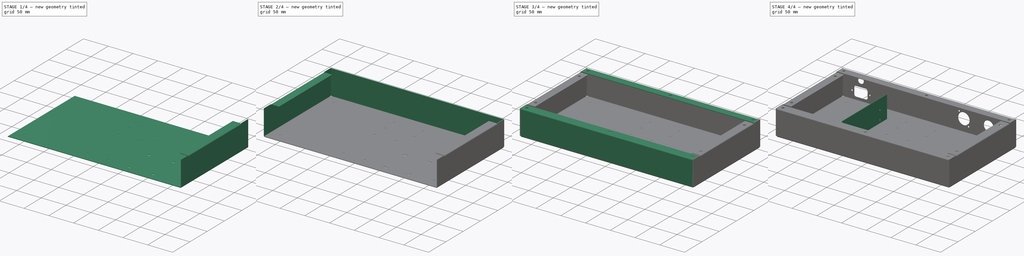
[diagram: build sequence overview — one tinted view per stage of 4, left to right]
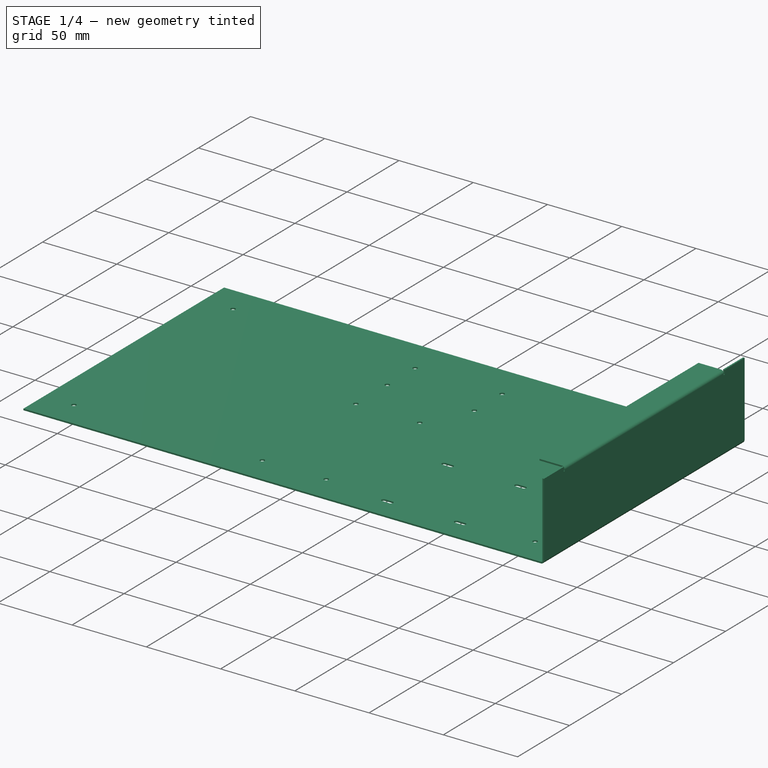
[diagram: stage 1 of 4 — iso view after this stage's code; geometry added in this stage tinted green]
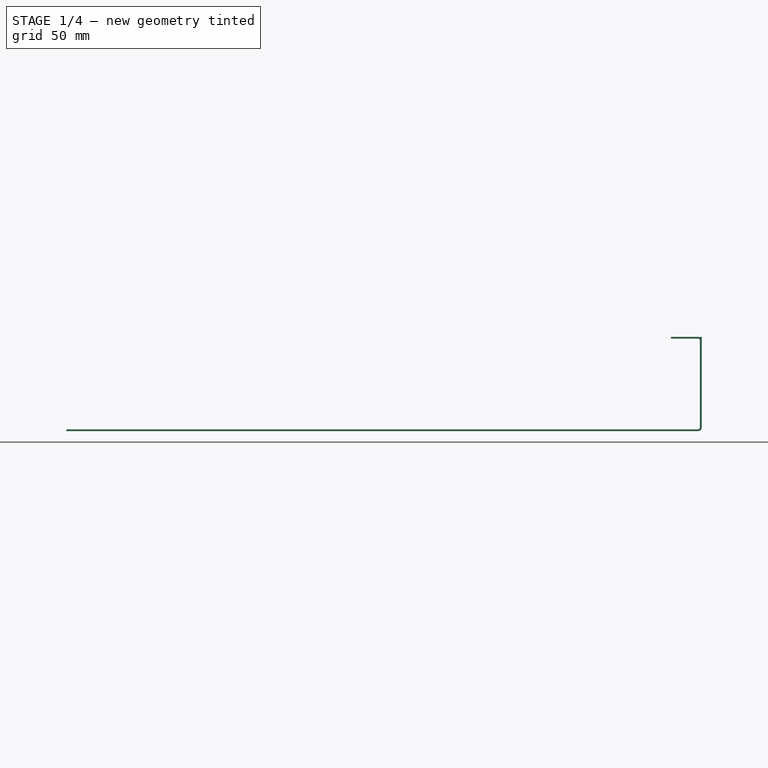
[diagram: stage 1 of 4 — front view after this stage's code; geometry added in this stage tinted green]
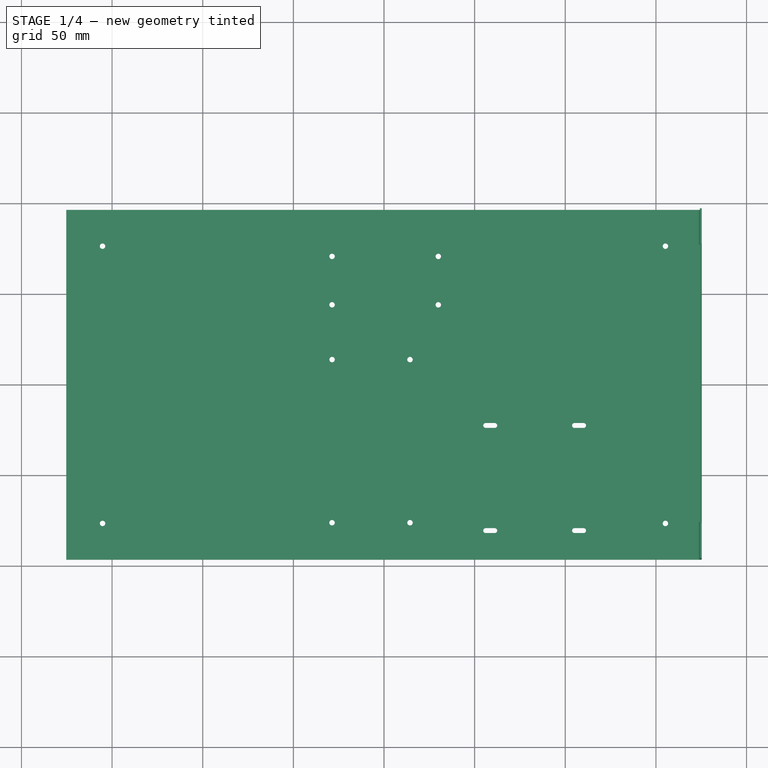
[diagram: stage 1 of 4 — top view after this stage's code; geometry added in this stage tinted green]
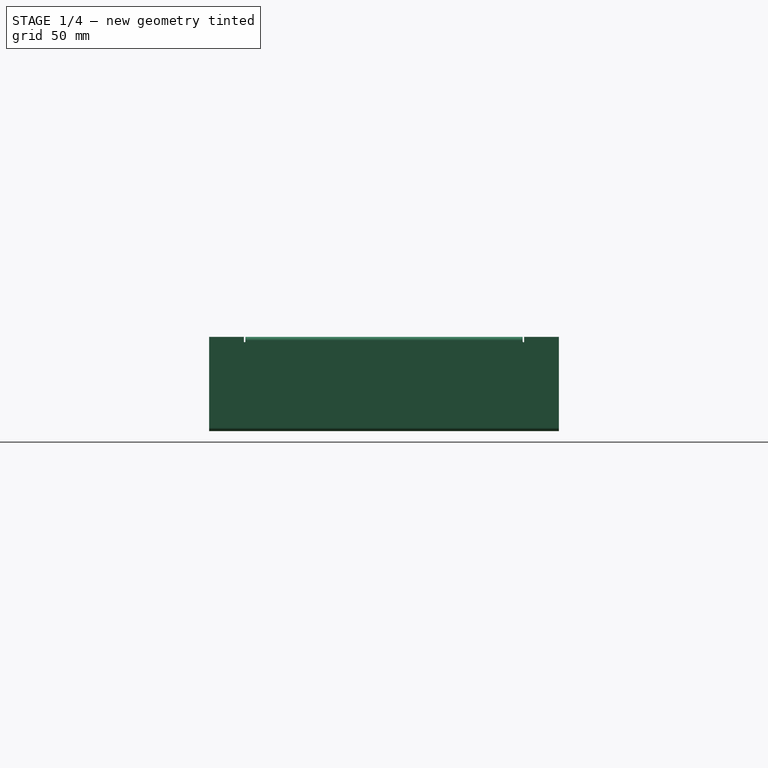
[diagram: stage 1 of 4 — right view after this stage's code; geometry added in this stage tinted green]
FCSTD DOCUMENT  (FreeCAD 1.1R20260414 (Git shallow))
Label: radiobox
License: All rights reserved
LicenseURL: https://en.wikipedia.org/wiki/All_rights_reserved
objects: PartDesign::FeaturePython×8, Sketcher::SketchObject×5, PartDesign::Pad×2, PartDesign::Hole×2, App::Point×1, PartDesign::Pocket×1, PartDesign::Body×1
note: 42 computed .brp shape members not serialized (recipe doc carries the construction recipe); baked Part::Feature solids carry a one-line shape summary decoded from their .brp

FEATURE [App::Point] Origin001  label="Počátek"
  Role = Origin
FEATURE [Sketcher::SketchObject] Sketch
  ArcFitTolerance = 1e-06
  AttachmentSupport = -> [Origin]
  ExternalTypes = [0]
  FullyConstrained = true
  MakeInternals = false
  MapMode = 5
  _ExternalGeoVersion = 1
  sketch-geometry (82):
    g0: LineSegment StartX=-175.25 StartY=96.4865 StartZ=0 EndX=-175.25 EndY=-96.4865 EndZ=0
    g1: LineSegment StartX=-175.25 StartY=-96.4865 StartZ=0 EndX=175.25 EndY=-96.4865 EndZ=0
    g2: LineSegment StartX=175.25 StartY=-96.4865 StartZ=0 EndX=175.25 EndY=96.4865 EndZ=0
    g3: LineSegment StartX=175.25 StartY=96.4865 StartZ=0 EndX=-175.25 EndY=96.4865 EndZ=0
    g4: LineSegment [constr] StartX=-160.25 StartY=47.5135 StartZ=0 EndX=-160.25 EndY=-81.4865 EndZ=0
    g5: LineSegment [constr] StartX=-160.25 StartY=-81.4865 StartZ=0 EndX=-63.25 EndY=-81.4865 EndZ=0
    g6: LineSegment [constr] StartX=-63.25 StartY=-81.4865 StartZ=0 EndX=-63.25 EndY=47.5135 EndZ=0
    g7: LineSegment [constr] StartX=-63.25 StartY=47.5135 StartZ=0 EndX=-160.25 EndY=47.5135 EndZ=0
    g8: LineSegment [constr] StartX=-33.25 StartY=18.5135 StartZ=0 EndX=-33.25 EndY=-81.4865 EndZ=0
    g9: LineSegment [constr] StartX=-33.25 StartY=-81.4865 StartZ=0 EndX=19.75 EndY=-81.4865 EndZ=0
    g10: LineSegment [constr] StartX=19.75 StartY=-81.4865 StartZ=0 EndX=19.75 EndY=18.5135 EndZ=0
    g11: LineSegment [constr] StartX=19.75 StartY=18.5135 StartZ=0 EndX=-33.25 EndY=18.5135 EndZ=0
    g12: LineSegment [constr] StartX=1.25 StartY=-24.2865 StartZ=0 EndX=1.25 EndY=-77.2865 EndZ=0
    g13: LineSegment [constr] StartX=1.25 StartY=-77.2865 StartZ=0 EndX=59.25 EndY=-77.2865 EndZ=0
    g14: LineSegment [constr] StartX=59.25 StartY=-77.2865 StartZ=0 EndX=59.25 EndY=-24.2865 EndZ=0
    g15: LineSegment [constr] StartX=59.25 StartY=-24.2865 StartZ=0 EndX=1.25 EndY=-24.2865 EndZ=0
    g16: LineSegment [constr] StartX=54.25 StartY=4.11351 StartZ=0 EndX=54.25 EndY=-83.8865 EndZ=0
    g17: LineSegment [constr] StartX=54.25 StartY=-83.8865 StartZ=0 EndX=110.25 EndY=-83.8865 EndZ=0
    g18: LineSegment [constr] StartX=110.25 StartY=-83.8865 StartZ=0 EndX=110.25 EndY=4.11351 EndZ=0
    g19: LineSegment [constr] StartX=110.25 StartY=4.11351 StartZ=0 EndX=54.25 EndY=4.11351 EndZ=0
    g20: LineSegment [constr] StartX=-32.35 StartY=81.4865 StartZ=0 EndX=-32.35 EndY=33.4865 EndZ=0
    g21: LineSegment [constr] StartX=-32.35 StartY=33.4865 StartZ=0 EndX=33.65 EndY=33.4865 EndZ=0
    g22: LineSegment [constr] StartX=33.65 StartY=33.4865 StartZ=0 EndX=33.65 EndY=81.4865 EndZ=0
    g23: LineSegment [constr] StartX=33.65 StartY=81.4865 StartZ=0 EndX=-32.35 EndY=81.4865 EndZ=0
    g24: GeomPoint X=-28.65 Y=70.8365 Z=0
    g25: GeomPoint X=29.95 Y=70.8365 Z=0
    g26: GeomPoint X=29.95 Y=44.1365 Z=0
    g27: GeomPoint X=-28.65 Y=44.1365 Z=0
    g28: GeomPoint X=-28.65 Y=13.9135 Z=0
    g29: GeomPoint X=14.35 Y=13.9135 Z=0
    g30: GeomPoint X=-28.65 Y=-76.0865 Z=0
    g31: GeomPoint X=14.35 Y=-76.0865 Z=0
    g32: GeomPoint X=-155.25 Y=76.4865 Z=0
    g33: GeomPoint X=-155.25 Y=-76.4865 Z=0
    g34: GeomPoint X=155.25 Y=-76.4865 Z=0
    g35: GeomPoint X=155.25 Y=76.4865 Z=0
    g36: LineSegment [constr] StartX=-63.25 StartY=-81.4865 StartZ=0 EndX=-33.25 EndY=-81.4865 EndZ=0
    g37: ArcOfCircle CenterX=56.1 CenterY=-80.4365 CenterZ=0 NormalX=0 NormalY=0 NormalZ=1 AngleXU=0 Radius=1.35 StartAngle=1.5708 EndAngle=4.71239
    g38: ArcOfCircle CenterX=61.1 CenterY=-80.4365 CenterZ=0 NormalX=0 NormalY=0 NormalZ=1 AngleXU=0 Radius=1.35 StartAngle=4.71239 EndAngle=7.85398
    g39: LineSegment StartX=56.1 StartY=-79.0865 StartZ=0 EndX=61.1 EndY=-79.0865 EndZ=0
    g40: LineSegment StartX=56.1 StartY=-81.7865 StartZ=0 EndX=61.1 EndY=-81.7865 EndZ=0
    g41: ArcOfCircle CenterX=105.1 CenterY=-22.4365 CenterZ=0 NormalX=0 NormalY=0 NormalZ=1 AngleXU=0 Radius=1.35 StartAngle=1.5708 EndAngle=4.71239
    g42: ArcOfCircle CenterX=110.1 CenterY=-22.4365 CenterZ=0 NormalX=0 NormalY=0 NormalZ=1 AngleXU=0 Radius=1.35 StartAngle=4.71239 EndAngle=7.85398
    g43: LineSegment StartX=105.1 StartY=-21.0865 StartZ=0 EndX=110.1 EndY=-21.0865 EndZ=0
    g44: LineSegment StartX=105.1 StartY=-23.7865 StartZ=0 EndX=110.1 EndY=-23.7865 EndZ=0
    g45: ArcOfCircle CenterX=56.1 CenterY=-22.4365 CenterZ=0 NormalX=0 NormalY=0 NormalZ=1 AngleXU=0 Radius=1.35 StartAngle=1.5708 EndAngle=4.71239
    g46: ArcOfCircle CenterX=61.1 CenterY=-22.4365 CenterZ=0 NormalX=0 NormalY=0 NormalZ=1 AngleXU=0 Radius=1.35 StartAngle=4.71239 EndAngle=7.85398
    g47: LineSegment StartX=56.1 StartY=-21.0865 StartZ=0 EndX=61.1 EndY=-21.0865 EndZ=0
    g48: LineSegment StartX=56.1 StartY=-23.7865 StartZ=0 EndX=61.1 EndY=-23.7865 EndZ=0
    g49: ArcOfCircle CenterX=105.1 CenterY=-80.4365 CenterZ=0 NormalX=0 NormalY=0 NormalZ=1 AngleXU=0 Radius=1.35 StartAngle=1.5708 EndAngle=4.71239
    g50: ArcOfCircle CenterX=110.1 CenterY=-80.4365 CenterZ=0 NormalX=0 NormalY=0 NormalZ=1 AngleXU=0 Radius=1.35 StartAngle=4.71239 EndAngle=7.85398
    g51: LineSegment StartX=105.1 StartY=-79.0865 StartZ=0 EndX=110.1 EndY=-79.0865 EndZ=0
    g52: LineSegment StartX=105.1 StartY=-81.7865 StartZ=0 EndX=110.1 EndY=-81.7865 EndZ=0
    g53: LineSegment [constr] StartX=61.1 StartY=-80.4365 StartZ=0 EndX=105.1 EndY=-80.4365 EndZ=0
    g54: LineSegment [constr] StartX=61.1 StartY=-22.4365 StartZ=0 EndX=105.1 EndY=-22.4365 EndZ=0
    g55: LineSegment [constr] StartX=110.1 StartY=-22.4365 StartZ=0 EndX=110.1 EndY=-80.4365 EndZ=0
    g56: LineSegment [constr] StartX=56.1 StartY=-22.4365 StartZ=0 EndX=56.1 EndY=-80.4365 EndZ=0
    g57: LineSegment [constr] StartX=-155.25 StartY=76.4865 StartZ=0 EndX=-155.25 EndY=-76.4865 EndZ=0
    g58: LineSegment [constr] StartX=-155.25 StartY=76.4865 StartZ=0 EndX=155.25 EndY=76.4865 EndZ=0
    g59: LineSegment [constr] StartX=155.25 StartY=76.4865 StartZ=0 EndX=155.25 EndY=-76.4865 EndZ=0
    g60: LineSegment [constr] StartX=-155.25 StartY=-76.4865 StartZ=0 EndX=155.25 EndY=-76.4865 EndZ=0
    g61: LineSegment [constr] StartX=-28.65 StartY=70.8365 StartZ=0 EndX=29.95 EndY=70.8365 EndZ=0
    g62: LineSegment [constr] StartX=29.95 StartY=70.8365 StartZ=0 EndX=29.95 EndY=44.1365 EndZ=0
    g63: LineSegment [constr] StartX=-28.65 StartY=70.8365 StartZ=0 EndX=-28.65 EndY=44.1365 EndZ=0
    g64: LineSegment [constr] StartX=-28.65 StartY=44.1365 StartZ=0 EndX=29.95 EndY=44.1365 EndZ=0
    g65: LineSegment [constr] StartX=-28.65 StartY=13.9135 StartZ=0 EndX=14.35 EndY=13.9135 EndZ=0
    g66: LineSegment [constr] StartX=-28.65 StartY=13.9135 StartZ=0 EndX=-28.65 EndY=-76.0865 EndZ=0
    g67: LineSegment [constr] StartX=14.35 StartY=-76.0865 StartZ=0 EndX=14.35 EndY=13.9135 EndZ=0
    g68: LineSegment [constr] StartX=-28.65 StartY=-76.0865 StartZ=0 EndX=14.35 EndY=-76.0865 EndZ=0
    g69: Circle CenterX=-155.25 CenterY=76.4865 CenterZ=0 NormalX=0 NormalY=0 NormalZ=1 AngleXU=0 Radius=1.5
    g70: Circle CenterX=-155.25 CenterY=-76.4865 CenterZ=0 NormalX=0 NormalY=0 NormalZ=1 AngleXU=0 Radius=1.5
    g71: Circle CenterX=155.25 CenterY=-76.4865 CenterZ=0 NormalX=0 NormalY=0 NormalZ=1 AngleXU=0 Radius=1.5
    g72: Circle CenterX=155.25 CenterY=76.4865 CenterZ=0 NormalX=0 NormalY=0 NormalZ=1 AngleXU=0 Radius=1.5
    g73: Circle CenterX=-28.65 CenterY=70.8365 CenterZ=0 NormalX=0 NormalY=0 NormalZ=1 AngleXU=0 Radius=1.5
    g74: Circle CenterX=29.95 CenterY=70.8365 CenterZ=0 NormalX=0 NormalY=0 NormalZ=1 AngleXU=0 Radius=1.5
    g75: Circle CenterX=-28.65 CenterY=44.1365 CenterZ=0 NormalX=0 NormalY=0 NormalZ=1 AngleXU=0 Radius=1.5
    g76: Circle CenterX=29.95 CenterY=44.1365 CenterZ=0 NormalX=0 NormalY=0 NormalZ=1 AngleXU=0 Radius=1.5
    g77: Circle CenterX=-28.65 CenterY=13.9135 CenterZ=0 NormalX=0 NormalY=0 NormalZ=1 AngleXU=0 Radius=1.5
    g78: Circle CenterX=14.35 CenterY=13.9135 CenterZ=0 NormalX=0 NormalY=0 NormalZ=1 AngleXU=0 Radius=1.5
    g79: Circle CenterX=-28.65 CenterY=-76.0865 CenterZ=0 NormalX=0 NormalY=0 NormalZ=1 AngleXU=0 Radius=1.5
    g80: Circle CenterX=14.35 CenterY=-76.0865 CenterZ=0 NormalX=0 NormalY=0 NormalZ=1 AngleXU=0 Radius=1.5
    g81: LineSegment [constr] StartX=-28.65 StartY=13.9135 StartZ=0 EndX=-28.65 EndY=44.1365 EndZ=0
  constraints (195):
    c: Coincident(g0,g1)
    c: Coincident(g1,g2)
    c: Coincident(g2,g3)
    c: Coincident(g3,g0)
    c: Vertical(g2)
    c: Horizontal(g1)
    c: Horizontal(g3)
    c: Symmetric(g0,g1,g-1)
    c: Coincident(g4,g5)
    c: Coincident(g5,g6)
    c: Coincident(g6,g7)
    c: Coincident(g7,g4)
    c: Vertical(g4)
    c: Vertical(g6)
    c: Horizontal(g5)
    c: Horizontal(g7)
    c: Coincident(g8,g9)
    c: Coincident(g9,g10)
    c: Coincident(g10,g11)
    c: Coincident(g11,g8)
    c: Vertical(g8)
    c: Vertical(g10)
    c: Horizontal(g9)
    c: Horizontal(g11)
    c: Coincident(g12,g13)
    c: Coincident(g13,g14)
    c: Coincident(g14,g15)
    c: Coincident(g15,g12)
    c: Vertical(g12)
    c: Vertical(g14)
    c: Horizontal(g13)
    c: Horizontal(g15)
    c: Coincident(g16,g17)
    c: Coincident(g17,g18)
    c: Coincident(g18,g19)
    c: Coincident(g19,g16)
    c: Vertical(g16)
    c: Vertical(g18)
    c: Horizontal(g17)
    c: Horizontal(g19)
    c: Coincident(g20,g21)
    c: Coincident(g21,g22)
    c: Coincident(g22,g23)
    c: Coincident(g23,g20)
    c: Vertical(g20)
    c: Vertical(g22)
    c: Horizontal(g21)
    c: Horizontal(g23)
    c: DistanceX(g7,g7) = 97
    c: DistanceY(g4,g4) = 129
    c: Distance(g0,g4) = 15
    c: Distance(g1,g5) = 15
    c: Distance(g18,g18) = 88
    c: DistanceX(g19,g19) = 56
    c: DistanceX(g15,g15) = 58
    c: DistanceY(g14,g14) = 53
    c: DistanceY(g8,g8) = 100
    c: DistanceX(g9,g9) = 53
    c: Distance(g2,g18) = 65
    c: Distance(g12,g10) = 18.5
    c: Distance(g6,g8) = 30
    c: Distance(g3,g23) = 15
    c: Distance(g23,g23) = 66
    c: DistanceY(g20,g20) = 48
    c: Distance(g20,g8) = 15
    c: Distance(g16,g14) = 5
    c: Distance(g9,g13) = 4.2
    c: Coincident(g36,g5)
    c: Coincident(g36,g8)
    c: Horizontal(g36)
    c: Tangent(g37,g39) = 1.5708
    c: Tangent(g37,g40) = -1.5708
    c: Tangent(g38,g39) = 1.5708
    c: Tangent(g38,g40) = -1.5708
    c: Equal(g37,g38)
    c: Horizontal(g39)
    c: Tangent(g41,g43) = 1.5708
    c: Tangent(g41,g44) = -1.5708
    c: Tangent(g42,g43) = 1.5708
    c: Tangent(g42,g44) = -1.5708
    c: Equal(g41,g42)
    c: Horizontal(g43)
    c: Tangent(g45,g47) = 1.5708
    c: Tangent(g45,g48) = -1.5708
    c: Tangent(g46,g47) = 1.5708
    c: Tangent(g46,g48) = -1.5708
    c: Equal(g45,g46)
    c: Horizontal(g47)
    c: Tangent(g49,g51) = 1.5708
    c: Tangent(g49,g52) = -1.5708
    c: Tangent(g50,g51) = 1.5708
    c: Tangent(g50,g52) = -1.5708
    c: Equal(g49,g50)
    c: Horizontal(g51)
    c: Radius(g38) = 1.35
    c: Radius(g49) = 1.35
    c: Radius(g45) = 1.35
    c: Radius(g42) = 1.35
    c: DistanceX(g37,g38) = 5
    c: DistanceX(g49,g50) = 5
    c: DistanceX(g45,g46) = 5
    c: DistanceX(g41,g42) = 5
    c: Coincident(g53,g38)
    c: Coincident(g53,g49)
    c: Horizontal(g53)
    c: Coincident(g54,g46)
    c: Coincident(g54,g41)
    c: Horizontal(g54)
    c: Coincident(g55,g42)
    c: Coincident(g55,g50)
    c: Vertical(g55)
    c: Coincident(g56,g45)
    c: Coincident(g56,g37)
    c: Vertical(g56)
    c: DistanceY(g55,g55) = 58
    c: DistanceX(g37,g49) = 49
    c: Distance(g17,g13) = 6.6
    c: Distance(g37,g16) = 1.85
    c: Distance(g37,g17) = 3.45
    c: Coincident(g57,g32)
    c: Coincident(g57,g33)
    c: Vertical(g57)
    c: Coincident(g58,g32)
    c: Coincident(g58,g35)
    c: Horizontal(g58)
    c: Coincident(g59,g35)
    c: Coincident(g59,g34)
    c: Vertical(g59)
    c: Distance(g33,g1) = 20
    c: Coincident(g60,g33)
    c: Coincident(g60,g34)
    c: Horizontal(g60)
    c: Distance(g32,g3) = 20
    c: Distance(g2,g59) = 20
    c: Coincident(g61,g24)
    c: Coincident(g61,g25)
    c: Horizontal(g61)
    c: Coincident(g62,g25)
    c: Coincident(g62,g26)
    c: Coincident(g63,g24)
    c: Coincident(g63,g27)
    c: Coincident(g64,g27)
    c: Coincident(g64,g26)
    c: Horizontal(g64)
    c: Vertical(g62)
    c: Vertical(g63)
    c: DistanceY(g62,g62) = 26.7
    c: DistanceX(g64,g64) = 58.6
    c: Distance(g23,g61) = 10.65
    c: Distance(g20,g63) = 3.7
    c: Coincident(g65,g28)
    c: Coincident(g65,g29)
    c: Horizontal(g65)
    c: Coincident(g66,g28)
    c: Coincident(g66,g30)
    c: Vertical(g66)
    c: Coincident(g67,g31)
    c: Coincident(g67,g29)
    c: Vertical(g67)
    c: Coincident(g68,g30)
    c: Coincident(g68,g31)
    c: Horizontal(g68)
    c: DistanceX(g65,g65) = 43
    c: DistanceY(g66,g66) = 90
    c: Distance(g8,g66) = 4.6
    c: Distance(g11,g65) = 4.6
    c: Diameter(g69) = 3
    c: Coincident(g69,g32)
    c: Diameter(g70) = 3
    c: Coincident(g70,g33)
    c: Diameter(g71) = 3
    c: Coincident(g71,g34)
    c: Diameter(g72) = 3
    c: Coincident(g72,g35)
    c: Diameter(g73) = 3
    c: Coincident(g73,g24)
    c: Diameter(g74) = 3
    c: Coincident(g74,g25)
    c: Diameter(g75) = 3
    c: Coincident(g75,g27)
    c: Diameter(g76) = 3
    c: Coincident(g76,g26)
    c: Diameter(g77) = 3
    c: Coincident(g77,g28)
    c: Diameter(g78) = 3
    c: Coincident(g78,g29)
    c: Diameter(g79) = 3
    c: Coincident(g79,g30)
    c: Diameter(g80) = 3
    c: Coincident(g80,g31)
    c: Vertical(g0)
    c: Distance(g0,g57) = 20
    c: Coincident(g81,g28)
    c: Coincident(g81,g27)
    c: Vertical(g81)
FEATURE [PartDesign::Pad] Pad
  Direction = (0,0,1)
  Length = 1
  Length2 = 10
  Profile = -> Sketch
  ReferenceAxis = -> Sketch [N_Axis]
  Refine = true
  SideType = 0
  Suppressed = false
  Type = 0
  Type2 = 0
FEATURE [PartDesign::FeaturePython] Bend  # WARN: FeaturePython — macro-defined, semantics opaque (R4)
  AutoMiter = true
  BaseFeature = -> Pad
  BendType = 1
  LengthList = [50]
  LengthSpec = 0
  NonperforationMaxLength = 5
  OffsetType = 1
  OffsetTypeOffset = 0
  Perforate = false
  PerforationAngle = 0
  PerforationInitialLength = 5
  PerforationMaxLength = 5
  RelativeAngleToRef = 0
  ReliefFactor = 0.7
  SupplAngleRef = false
  Suppressed = false
  UseReliefFactor = false
  angle = 90
  baseObject = -> Pad [Edge10]
  bendAList = [90]
  extend1 = 0
  extend2 = 0
  gap1 = 0
  gap2 = 0
  invert = false
  kfactor = 0.5
  length = 50
  maxExtendDist = 5
  minGap = 0.2
  minReliefGap = 1
  miterangle1 = 0
  miterangle2 = 0
  offset = 0
  radius = 1
  reliefType = 0
  reliefd = 1
  reliefw = 0.8
  sketchflip = false
  sketchinvert = false
  unfold = false
FEATURE [PartDesign::FeaturePython] Bend001  # WARN: FeaturePython — macro-defined, semantics opaque (R4)
  AutoMiter = true
  BaseFeature = -> Bend
  BendType = 1
  LengthList = [15]
  LengthSpec = 0
  NonperforationMaxLength = 5
  OffsetType = 1
  OffsetTypeOffset = 0
  Perforate = false
  PerforationAngle = 0
  PerforationInitialLength = 5
  PerforationMaxLength = 5
  RelativeAngleToRef = 0
  ReliefFactor = 0.7
  SupplAngleRef = false
  Suppressed = false
  UseReliefFactor = false
  angle = 90
  baseObject = -> Bend [Edge112]
  bendAList = [90]
  extend1 = 0
  extend2 = 0
  gap1 = 20
  gap2 = 20
  invert = false
  kfactor = 0.5
  length = 15
  maxExtendDist = 5
  minGap = 0.2
  minReliefGap = 1
  miterangle1 = 0
  miterangle2 = 0
  offset = 0
  radius = 1
  reliefType = 1
  reliefd = 1
  reliefw = 0.8
  sketchflip = false
  sketchinvert = false
  unfold = false
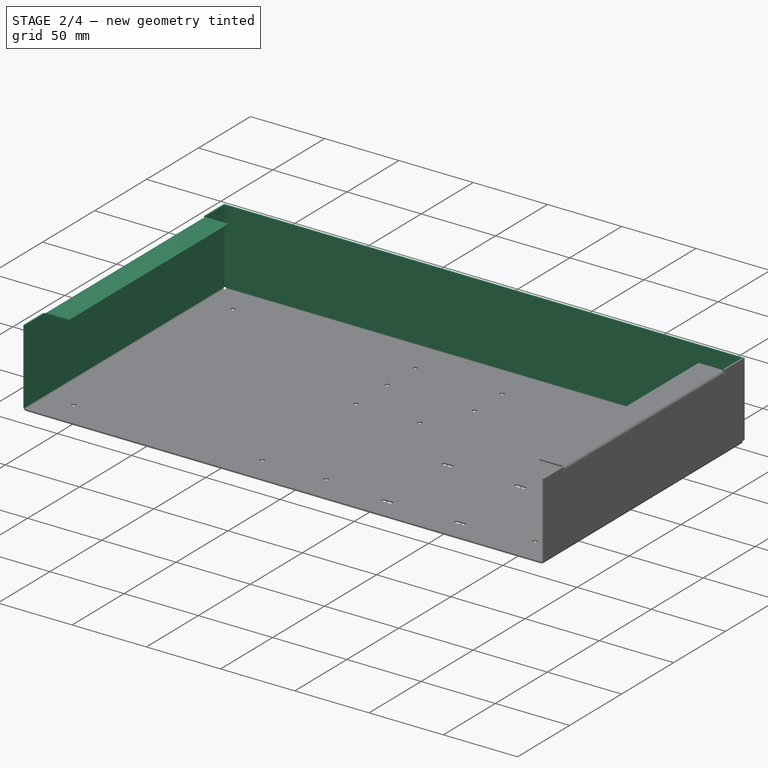
[diagram: stage 2 of 4 — iso view after this stage's code; geometry added in this stage tinted green]
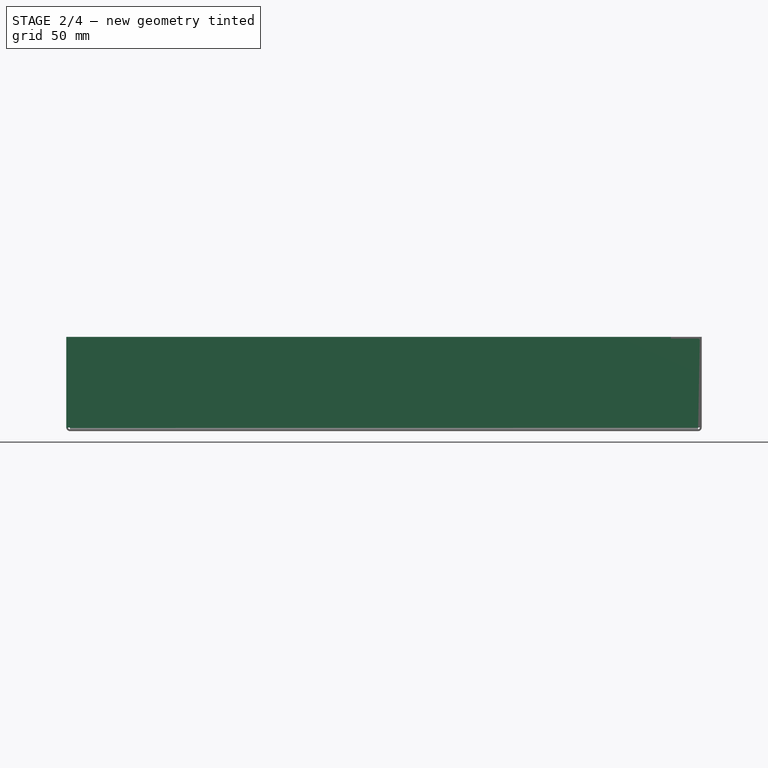
[diagram: stage 2 of 4 — front view after this stage's code; geometry added in this stage tinted green]
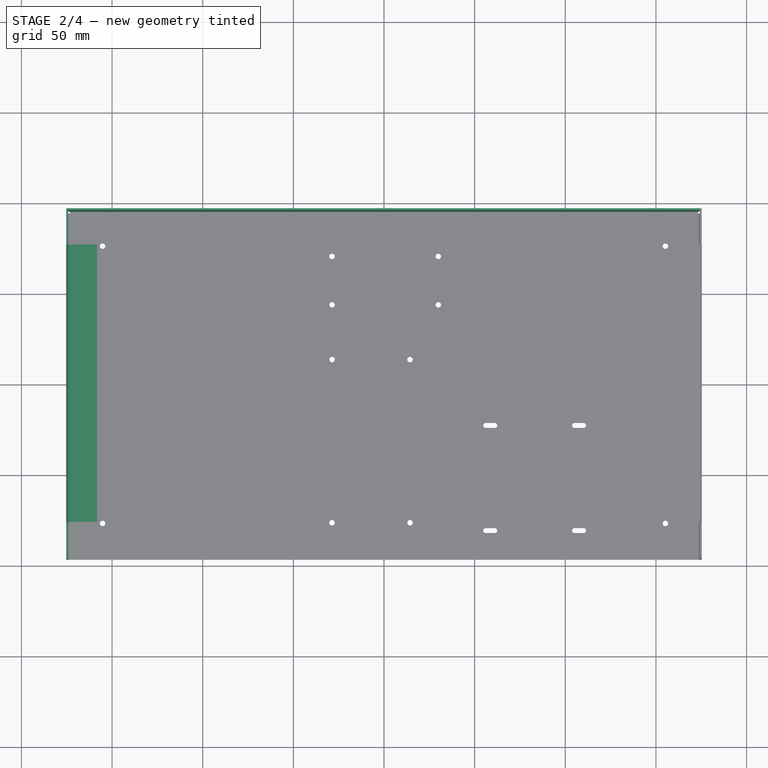
[diagram: stage 2 of 4 — top view after this stage's code; geometry added in this stage tinted green]
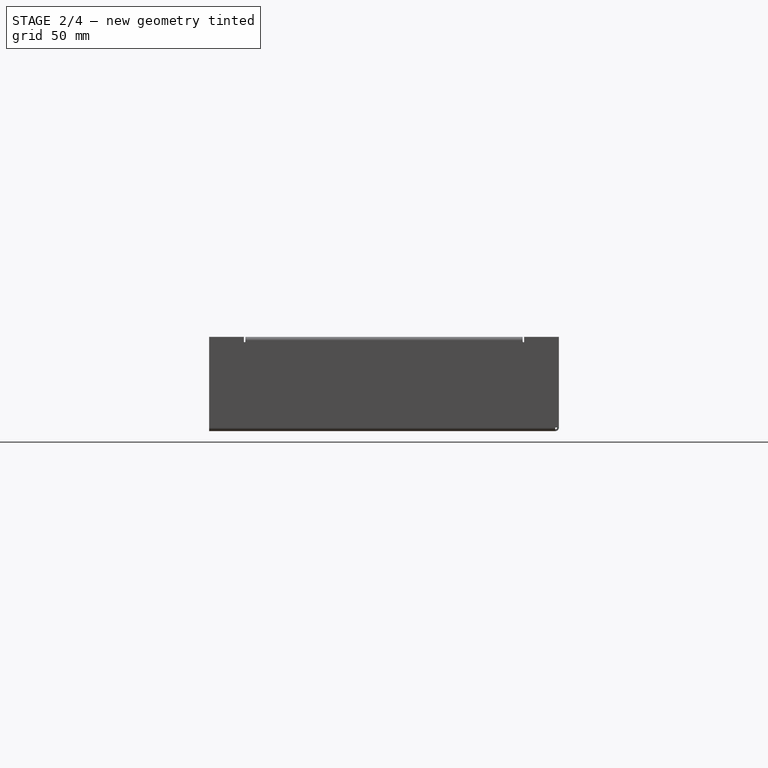
[diagram: stage 2 of 4 — right view after this stage's code; geometry added in this stage tinted green]
FEATURE [PartDesign::FeaturePython] Bend002  # WARN: FeaturePython — macro-defined, semantics opaque (R4)
  AutoMiter = true
  BaseFeature = -> Bend001
  BendType = 1
  LengthList = [50]
  LengthSpec = 0
  NonperforationMaxLength = 5
  OffsetType = 1
  OffsetTypeOffset = 0
  Perforate = false
  PerforationAngle = 0
  PerforationInitialLength = 5
  PerforationMaxLength = 5
  RelativeAngleToRef = 0
  ReliefFactor = 0.7
  SupplAngleRef = false
  Suppressed = false
  UseReliefFactor = false
  angle = 90
  baseObject = -> Bend001 [Edge4]
  bendAList = [90]
  extend1 = 0
  extend2 = 0
  gap1 = 0
  gap2 = 0
  invert = false
  kfactor = 0.5
  length = 50
  maxExtendDist = 5
  minGap = 0.2
  minReliefGap = 1
  miterangle1 = 0
  miterangle2 = 0
  offset = 0
  radius = 1
  reliefType = 0
  reliefd = 1
  reliefw = 0.8
  sketchflip = false
  sketchinvert = false
  unfold = false
FEATURE [PartDesign::FeaturePython] Bend003  # WARN: FeaturePython — macro-defined, semantics opaque (R4)
  AutoMiter = true
  BaseFeature = -> Bend002
  BendType = 1
  LengthList = [15]
  LengthSpec = 0
  NonperforationMaxLength = 5
  OffsetType = 1
  OffsetTypeOffset = 0
  Perforate = false
  PerforationAngle = 0
  PerforationInitialLength = 5
  PerforationMaxLength = 5
  RelativeAngleToRef = 0
  ReliefFactor = 0.7
  SupplAngleRef = false
  Suppressed = false
  UseReliefFactor = false
  angle = 90
  baseObject = -> Bend002 [Edge133]
  bendAList = [90]
  extend1 = 0
  extend2 = 0
  gap1 = 20
  gap2 = 20
  invert = false
  kfactor = 0.5
  length = 15
  maxExtendDist = 5
  minGap = 0.2
  minReliefGap = 1
  miterangle1 = 0
  miterangle2 = 0
  offset = 0
  radius = 1
  reliefType = 1
  reliefd = 1
  reliefw = 0.8
  sketchflip = false
  sketchinvert = false
  unfold = false
FEATURE [PartDesign::FeaturePython] Bend004  # WARN: FeaturePython — macro-defined, semantics opaque (R4)
  AutoMiter = true
  BaseFeature = -> Bend003
  BendType = 1
  LengthList = [50]
  LengthSpec = 0
  NonperforationMaxLength = 5
  OffsetType = 1
  OffsetTypeOffset = 0
  Perforate = false
  PerforationAngle = 0
  PerforationInitialLength = 5
  PerforationMaxLength = 5
  RelativeAngleToRef = 0
  ReliefFactor = 0.7
  SupplAngleRef = false
  Suppressed = false
  UseReliefFactor = false
  angle = 90
  baseObject = -> Bend003 [Edge3]
  bendAList = [90]
  extend1 = 1
  extend2 = 1
  gap1 = 0
  gap2 = 0
  invert = false
  kfactor = 0.5
  length = 50
  maxExtendDist = 5
  minGap = 0.2
  minReliefGap = 1
  miterangle1 = 0
  miterangle2 = 0
  offset = 0
  radius = 1
  reliefType = 0
  reliefd = 1
  reliefw = 0.8
  sketchflip = false
  sketchinvert = false
  unfold = false
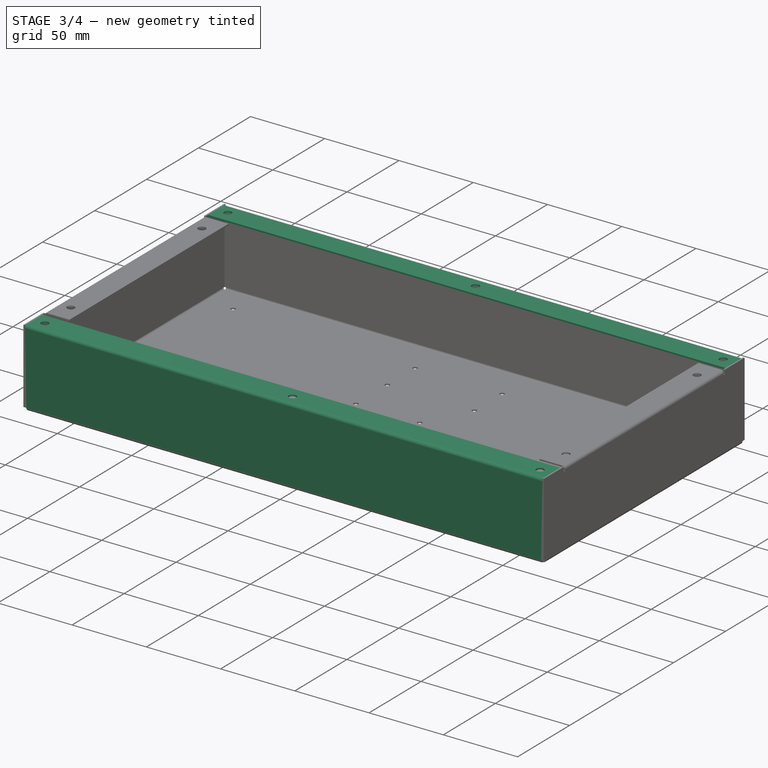
[diagram: stage 3 of 4 — iso view after this stage's code; geometry added in this stage tinted green]
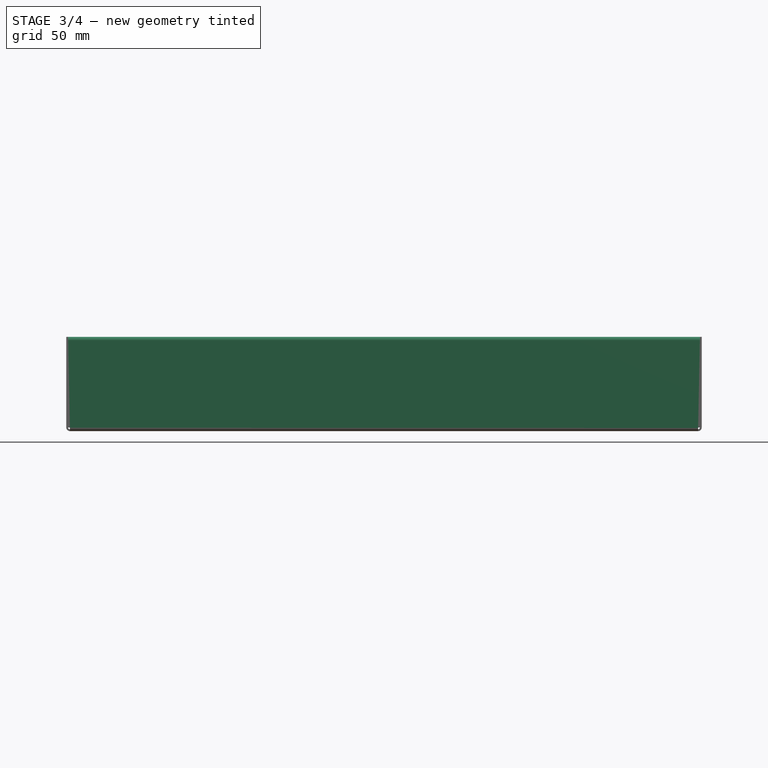
[diagram: stage 3 of 4 — front view after this stage's code; geometry added in this stage tinted green]
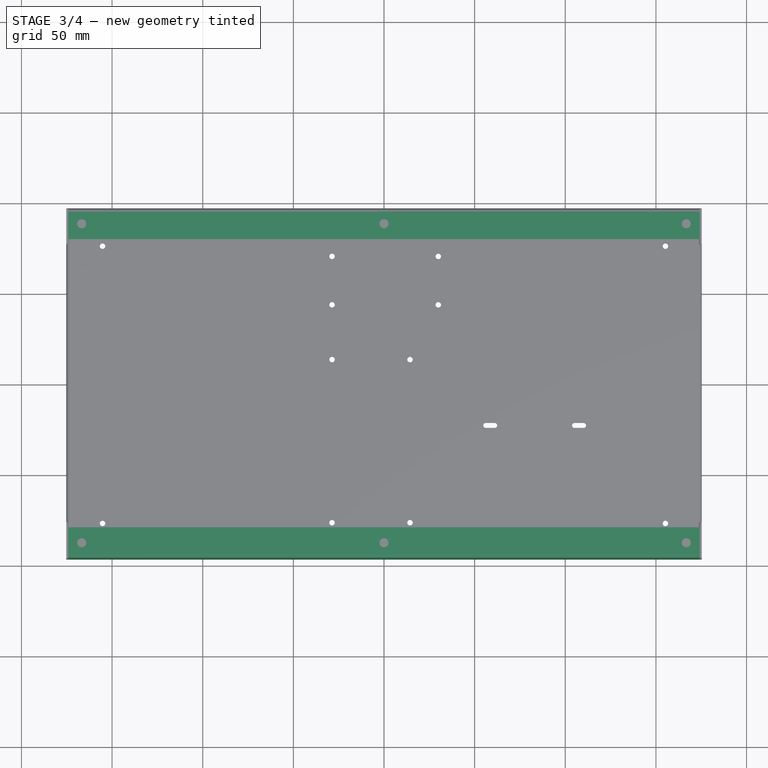
[diagram: stage 3 of 4 — top view after this stage's code; geometry added in this stage tinted green]
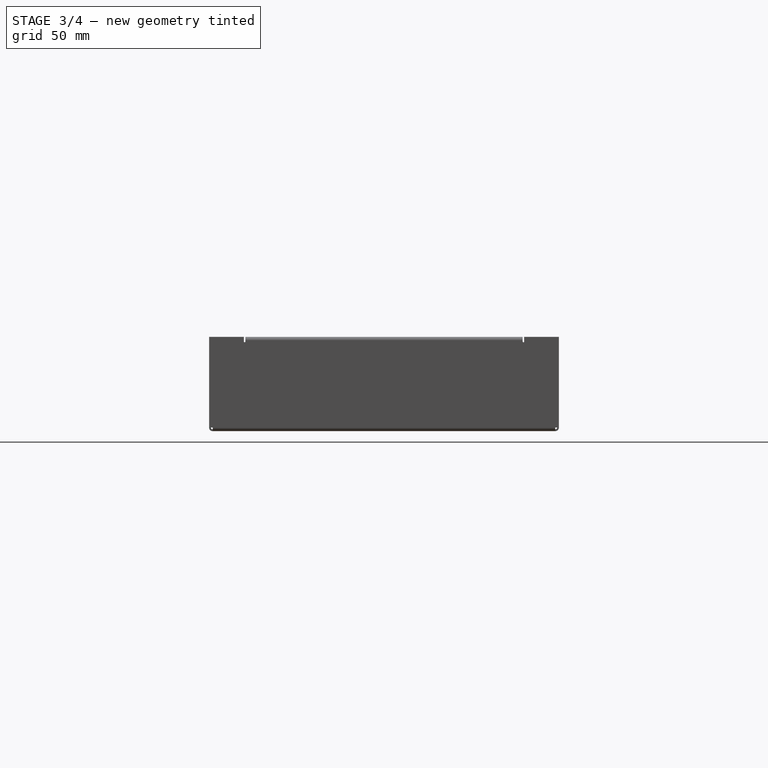
[diagram: stage 3 of 4 — right view after this stage's code; geometry added in this stage tinted green]
FEATURE [PartDesign::FeaturePython] Bend005  # WARN: FeaturePython — macro-defined, semantics opaque (R4)
  AutoMiter = true
  BaseFeature = -> Bend004
  BendType = 1
  LengthList = [15]
  LengthSpec = 0
  NonperforationMaxLength = 5
  OffsetType = 1
  OffsetTypeOffset = 0
  Perforate = false
  PerforationAngle = 0
  PerforationInitialLength = 5
  PerforationMaxLength = 5
  RelativeAngleToRef = 0
  ReliefFactor = 0.7
  SupplAngleRef = false
  Suppressed = false
  UseReliefFactor = false
  angle = 90
  baseObject = -> Bend004 [Edge192]
  bendAList = [90]
  extend1 = 0
  extend2 = 0
  gap1 = 0
  gap2 = 0
  invert = false
  kfactor = 0.5
  length = 15
  maxExtendDist = 5
  minGap = 0.2
  minReliefGap = 1
  miterangle1 = 0
  miterangle2 = 0
  offset = 0
  radius = 1
  reliefType = 0
  reliefd = 1
  reliefw = 0.8
  sketchflip = false
  sketchinvert = false
  unfold = false
FEATURE [PartDesign::FeaturePython] Bend006  # WARN: FeaturePython — macro-defined, semantics opaque (R4)
  AutoMiter = true
  BaseFeature = -> Bend005
  BendType = 1
  LengthList = [50]
  LengthSpec = 0
  NonperforationMaxLength = 5
  OffsetType = 1
  OffsetTypeOffset = 0
  Perforate = false
  PerforationAngle = 0
  PerforationInitialLength = 5
  PerforationMaxLength = 5
  RelativeAngleToRef = 0
  ReliefFactor = 0.7
  SupplAngleRef = false
  Suppressed = false
  UseReliefFactor = false
  angle = 90
  baseObject = -> Bend005 [Edge34]
  bendAList = [90]
  extend1 = 1
  extend2 = 1
  gap1 = 0
  gap2 = 0
  invert = false
  kfactor = 0.5
  length = 50
  maxExtendDist = 5
  minGap = 0.2
  minReliefGap = 1
  miterangle1 = 0
  miterangle2 = 0
  offset = 0
  radius = 1
  reliefType = 0
  reliefd = 1
  reliefw = 0.8
  sketchflip = false
  sketchinvert = false
  unfold = false
FEATURE [PartDesign::FeaturePython] Bend007  # WARN: FeaturePython — macro-defined, semantics opaque (R4)
  AutoMiter = true
  BaseFeature = -> Bend006
  BendType = 1
  LengthList = [15]
  LengthSpec = 0
  NonperforationMaxLength = 5
  OffsetType = 1
  OffsetTypeOffset = 0
  Perforate = false
  PerforationAngle = 0
  PerforationInitialLength = 5
  PerforationMaxLength = 5
  RelativeAngleToRef = 0
  ReliefFactor = 0.7
  SupplAngleRef = false
  Suppressed = false
  UseReliefFactor = false
  angle = 90
  baseObject = -> Bend006 [Edge250]
  bendAList = [90]
  extend1 = 0
  extend2 = 0
  gap1 = 0
  gap2 = 0
  invert = false
  kfactor = 0.5
  length = 15
  maxExtendDist = 5
  minGap = 0.2
  minReliefGap = 1
  miterangle1 = 0
  miterangle2 = 0
  offset = 0
  radius = 1
  reliefType = 0
  reliefd = 1
  reliefw = 0.8
  sketchflip = false
  sketchinvert = false
  unfold = false
FEATURE [Sketcher::SketchObject] Sketch001
  ArcFitTolerance = 1e-06
  AttachmentSupport = -> [Bend007]
  ExternalTypes = [0]
  FullyConstrained = true
  MakeInternals = false
  MapMode = 5
  Placement = pos=(-5.8e-15,0,52) rot=(0,0,1;0rad)
  _ExternalGeoVersion = 1
  sketch-geometry (16):
    g0: GeomPoint X=-166.75 Y=63 Z=0
    g1: GeomPoint X=-166.75 Y=-63 Z=0
    g2: GeomPoint X=-166.75 Y=-88 Z=0
    g3: GeomPoint X=166.75 Y=-88 Z=0
    g4: GeomPoint X=166.75 Y=88 Z=0
    g5: GeomPoint X=-166.75 Y=88 Z=0
    g6: GeomPoint X=0 Y=88 Z=0
    g7: GeomPoint X=0 Y=-88 Z=0
    g8: GeomPoint X=166.75 Y=63 Z=0
    g9: GeomPoint X=166.75 Y=-63 Z=0
    g10: LineSegment [constr] StartX=-166.75 StartY=88 StartZ=0 EndX=166.75 EndY=88 EndZ=0
    g11: LineSegment [constr] StartX=-166.75 StartY=-88 StartZ=0 EndX=166.75 EndY=-88 EndZ=0
    g12: LineSegment [constr] StartX=-166.75 StartY=88 StartZ=0 EndX=-166.75 EndY=-88 EndZ=0
    g13: LineSegment [constr] StartX=166.75 StartY=88 StartZ=0 EndX=166.75 EndY=-88 EndZ=0
    g14: LineSegment [constr] StartX=-166.75 StartY=63 StartZ=0 EndX=166.75 EndY=63 EndZ=0
    g15: LineSegment [constr] StartX=-166.75 StartY=-63 StartZ=0 EndX=166.75 EndY=-63 EndZ=0
  constraints (32):
    c: PointOnObject(g6,g-2)
    c: PointOnObject(g7,g-2)
    c: Coincident(g10,g5)
    c: Coincident(g10,g4)
    c: Horizontal(g10)
    c: PointOnObject(g6,g10)
    c: Coincident(g11,g2)
    c: Coincident(g11,g3)
    c: Horizontal(g11)
    c: PointOnObject(g7,g11)
    c: Coincident(g12,g5)
    c: Coincident(g12,g2)
    c: Vertical(g12)
    c: Coincident(g13,g4)
    c: Coincident(g13,g3)
    c: Vertical(g13)
    c: PointOnObject(g8,g13)
    c: PointOnObject(g9,g13)
    c: PointOnObject(g0,g12)
    c: PointOnObject(g1,g12)
    c: DistanceY(g3,g4) = 176
    c: DistanceY(g8,g4) = 25
    c: Distance(g9,g3) = 25
    c: Coincident(g14,g0)
    c: Coincident(g14,g8)
    c: Horizontal(g14)
    c: Coincident(g15,g1)
    c: Coincident(g15,g9)
    c: Horizontal(g15)
    c: Distance(g-1,g14) = 63
    c: DistanceX(g2,g3) = 333.5
    c: DistanceX(g7,g3) = 166.75
FEATURE [PartDesign::Hole] Hole
  BaseFeature = -> Bend007
  BaseProfileType = 7
  CustomThreadClearance = 0
  Depth = 25
  DepthType = 0
  Diameter = 5
  DrillForDepth = false
  DrillPoint = 1
  DrillPointAngle = 118
  HoleCutCountersinkAngle = 90
  HoleCutCustomValues = false
  HoleCutDepth = 0
  HoleCutDiameter = 0
  HoleCutType = 0
  ModelThread = false
  Profile = -> Sketch001
  Refine = true
  Suppressed = false
  Tapered = false
  TaperedAngle = 90
  ThreadClass = 0
  ThreadDepth = 25
  ThreadDepthType = 0
  ThreadDiameter = 5
  ThreadDirection = 0
  ThreadFit = 0
  ThreadSize = 0
  ThreadType = 0
  Threaded = false
  UseCustomThreadClearance = false
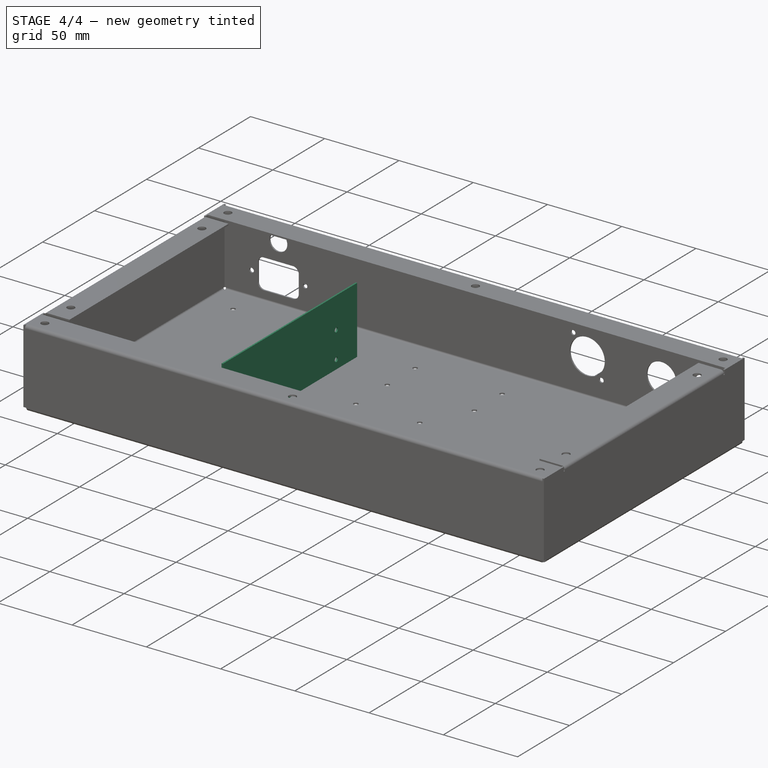
[diagram: stage 4 of 4 — iso view after this stage's code; geometry added in this stage tinted green]
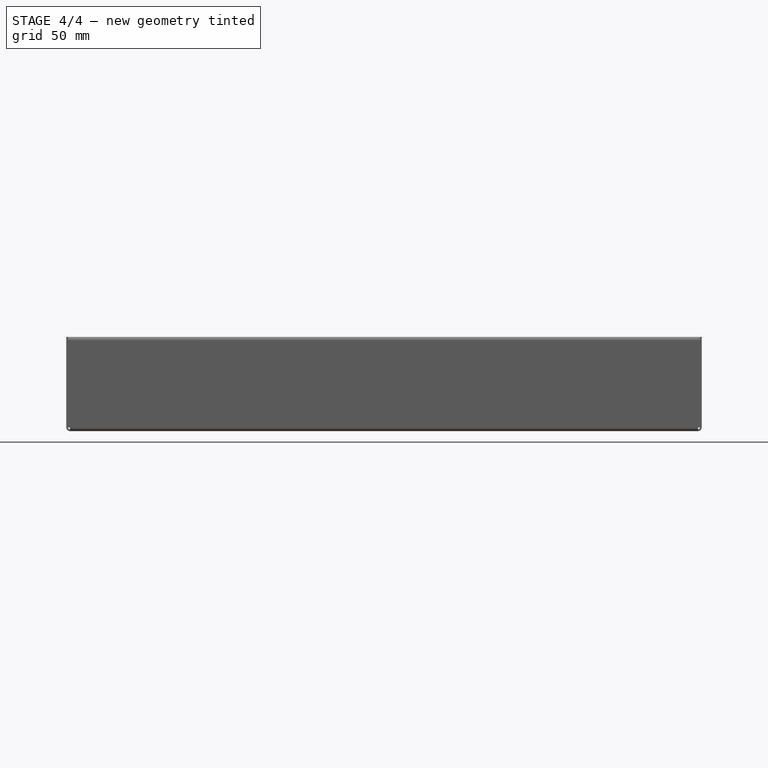
[diagram: stage 4 of 4 — front view after this stage's code; geometry added in this stage tinted green]
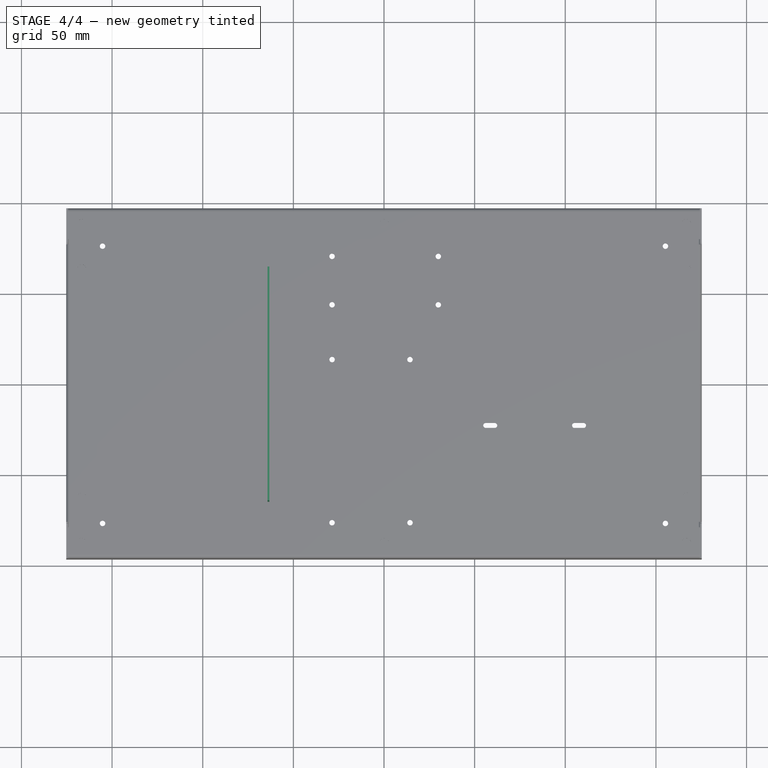
[diagram: stage 4 of 4 — top view after this stage's code; geometry added in this stage tinted green]
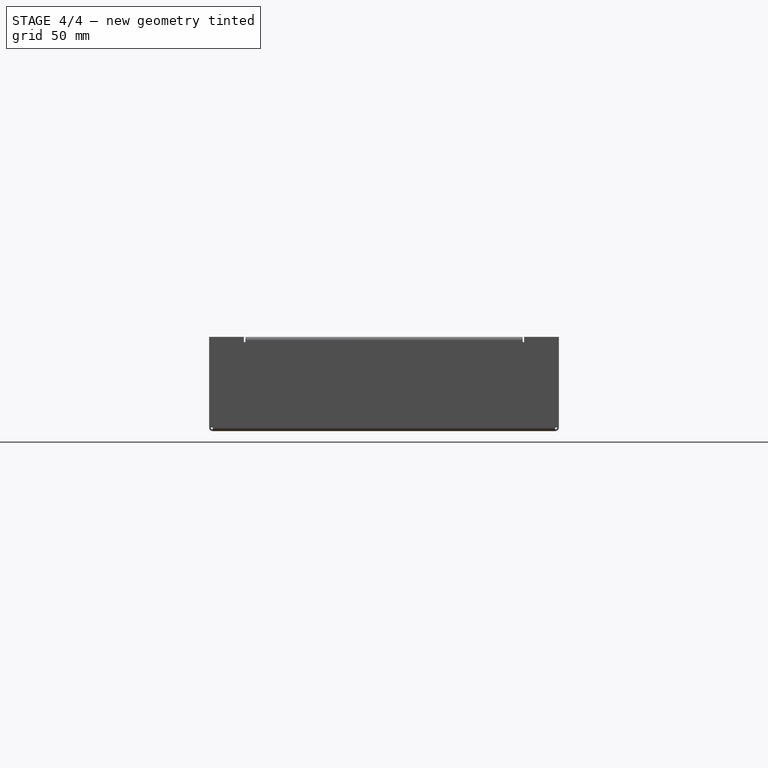
[diagram: stage 4 of 4 — right view after this stage's code; geometry added in this stage tinted green]
FEATURE [Sketcher::SketchObject] Sketch002
  ArcFitTolerance = 1e-06
  AttachmentSupport = -> [Hole]
  ExternalTypes = [0]
  FullyConstrained = true
  MakeInternals = false
  MapMode = 5
  Placement = pos=(0,0,1) rot=(0,0,1;0rad)
  _ExternalGeoVersion = 1
  sketch-geometry (4):
    g0: LineSegment StartX=-64.25 StartY=64.5 StartZ=0 EndX=-64.25 EndY=-64.5 EndZ=0
    g1: LineSegment StartX=-64.25 StartY=-64.5 StartZ=0 EndX=-63.25 EndY=-64.5 EndZ=0
    g2: LineSegment StartX=-63.25 StartY=-64.5 StartZ=0 EndX=-63.25 EndY=64.5 EndZ=0
    g3: LineSegment StartX=-63.25 StartY=64.5 StartZ=0 EndX=-64.25 EndY=64.5 EndZ=0
  constraints (12):
    c: Coincident(g0,g1)
    c: Coincident(g1,g2)
    c: Coincident(g2,g3)
    c: Coincident(g3,g0)
    c: Vertical(g0)
    c: Vertical(g2)
    c: Horizontal(g1)
    c: Horizontal(g3)
    c: Distance(g3,g3) = 1
    c: DistanceY(g2,g2) = 129
    c: Distance(g-2,g2) = 63.25
    c: Distance(g0,g-1) = 64.5
FEATURE [PartDesign::Pad] Pad001
  BaseFeature = -> Hole
  Direction = (0,0,1)
  Length = 45
  Length2 = 10
  Profile = -> Sketch002
  ReferenceAxis = -> Sketch002 [N_Axis]
  Refine = true
  SideType = 0
  Suppressed = false
  Type = 0
  Type2 = 0
FEATURE [Sketcher::SketchObject] Sketch003
  ArcFitTolerance = 1e-06
  AttachmentSupport = -> [Pad001]
  ExternalTypes = [0]
  FullyConstrained = true
  MakeInternals = false
  MapMode = 5
  Placement = pos=(-64.25,0,0) rot=(0.57735,-0.57735,-0.57735;2.0944rad)
  _ExternalGeoVersion = 1
  sketch-geometry (4):
    g0: GeomPoint X=32.5 Y=16 Z=0
    g1: GeomPoint X=-44.5 Y=25 Z=0
    g2: GeomPoint X=-44.5 Y=7 Z=0
    g3: LineSegment [constr] StartX=-44.5 StartY=25 StartZ=0 EndX=-44.5 EndY=7 EndZ=0
  constraints (8):
    c: DistanceY(g2,g1) = 18
    c: DistanceX(g1,g0) = 77
    c: Coincident(g3,g1)
    c: Coincident(g3,g2)
    c: Vertical(g3)
    c: DistanceY(g0,g1) = 9
    c: Distance(g2,g-1) = 7
    c: Distance(g0,g-2) = 32.5
FEATURE [PartDesign::Hole] Hole001
  BaseFeature = -> Pad001
  BaseProfileType = 7
  CustomThreadClearance = 0
  Depth = 25
  DepthType = 0
  Diameter = 3
  DrillForDepth = false
  DrillPoint = 1
  DrillPointAngle = 118
  HoleCutCountersinkAngle = 90
  HoleCutCustomValues = false
  HoleCutDepth = 0
  HoleCutDiameter = 0
  HoleCutType = 0
  ModelThread = false
  Profile = -> Sketch003
  Refine = true
  Suppressed = false
  Tapered = false
  TaperedAngle = 90
  ThreadClass = 0
  ThreadDepth = 25
  ThreadDepthType = 0
  ThreadDiameter = 3
  ThreadDirection = 0
  ThreadFit = 0
  ThreadSize = 0
  ThreadType = 0
  Threaded = false
  UseCustomThreadClearance = false
FEATURE [Sketcher::SketchObject] Sketch004
  ArcFitTolerance = 1e-06
  AttachmentSupport = -> [Hole001]
  ExternalTypes = [0]
  FullyConstrained = true
  MakeInternals = false
  MapMode = 5
  Placement = pos=(0,96.4865,0) rot=(0,0.707107,0.707107;3.14159rad)
  _ExternalGeoVersion = 1
  sketch-geometry (23):
    g0: Circle CenterX=120 CenterY=17 CenterZ=0 NormalX=0 NormalY=0 NormalZ=1 AngleXU=0 Radius=1.5
    g1: Circle CenterX=156 CenterY=17 CenterZ=0 NormalX=0 NormalY=0 NormalZ=1 AngleXU=0 Radius=1.5
    g2: Circle CenterX=138 CenterY=39 CenterZ=0 NormalX=0 NormalY=0 NormalZ=1 AngleXU=0 Radius=6
    g3: Circle CenterX=-70 CenterY=25 CenterZ=0 NormalX=0 NormalY=0 NormalZ=1 AngleXU=0 Radius=11.8
    g4: Circle CenterX=-60.5 CenterY=37 CenterZ=0 NormalX=0 NormalY=0 NormalZ=1 AngleXU=0 Radius=1.55
    g5: Circle CenterX=-79.5 CenterY=13 CenterZ=0 NormalX=0 NormalY=0 NormalZ=1 AngleXU=0 Radius=1.55
    g6: LineSegment StartX=124.25 StartY=23 StartZ=0 EndX=124.25 EndY=11 EndZ=0
    g7: LineSegment StartX=128.25 StartY=7 StartZ=0 EndX=147.75 EndY=7 EndZ=0
    g8: LineSegment StartX=151.75 StartY=11 StartZ=0 EndX=151.75 EndY=23 EndZ=0
    g9: LineSegment StartX=147.75 StartY=27 StartZ=0 EndX=128.25 EndY=27 EndZ=0
    g10: ArcOfCircle CenterX=128.25 CenterY=23 CenterZ=0 NormalX=0 NormalY=0 NormalZ=1 AngleXU=0 Radius=4 StartAngle=1.5708 EndAngle=3.14159
    g11: ArcOfCircle CenterX=128.25 CenterY=11 CenterZ=0 NormalX=0 NormalY=0 NormalZ=1 AngleXU=0 Radius=4 StartAngle=3.14159 EndAngle=4.71239
    g12: ArcOfCircle CenterX=147.75 CenterY=11 CenterZ=0 NormalX=0 NormalY=0 NormalZ=1 AngleXU=0 Radius=4 StartAngle=4.71239 EndAngle=6.28319
    g13: ArcOfCircle CenterX=147.75 CenterY=23 CenterZ=0 NormalX=0 NormalY=0 NormalZ=1 AngleXU=0 Radius=4 StartAngle=1.58e-14 EndAngle=1.5708
    g14: GeomPoint [constr] X=124.25 Y=27 Z=0
    g15: GeomPoint [constr] X=151.75 Y=7 Z=0
    g16: LineSegment [constr] StartX=120 StartY=17 StartZ=0 EndX=156 EndY=17 EndZ=0
    g17: Circle CenterX=-150 CenterY=25 CenterZ=0 NormalX=0 NormalY=0 NormalZ=1 AngleXU=0 Radius=10
    g18: Circle CenterX=-120 CenterY=25 CenterZ=0 NormalX=0 NormalY=0 NormalZ=1 AngleXU=0 Radius=10
    g19: LineSegment [constr] StartX=-70 StartY=25 StartZ=0 EndX=-120 EndY=25 EndZ=0
    g20: LineSegment [constr] StartX=-120 StartY=25 StartZ=0 EndX=-150 EndY=25 EndZ=0
    g21: LineSegment [constr] StartX=-60.5 StartY=37 StartZ=0 EndX=-60.5 EndY=13 EndZ=0
    g22: LineSegment [constr] StartX=-79.5 StartY=13 StartZ=0 EndX=-60.5 EndY=13 EndZ=0
  constraints (59):
    c: Diameter(g2) = 12
    c: Tangent(g6,g10) = -1.5708
    c: Tangent(g6,g11) = -1.5708
    c: Tangent(g7,g11) = -1.5708
    c: Tangent(g7,g12) = -1.5708
    c: Tangent(g8,g12) = -1.5708
    c: Tangent(g8,g13) = -1.5708
    c: Tangent(g9,g13) = -1.5708
    c: Tangent(g9,g10) = -1.5708
    c: Vertical(g6)
    c: Vertical(g8)
    c: Horizontal(g7)
    c: Horizontal(g9)
    c: Equal(g10,g11)
    c: Equal(g11,g12)
    c: Equal(g12,g13)
    c: PointOnObject(g14,g6)
    c: PointOnObject(g14,g9)
    c: PointOnObject(g15,g7)
    c: PointOnObject(g15,g8)
    c: Radius(g13) = 4
    c: DistanceX(g6,g8) = 27.5
    c: DistanceY(g7,g9) = 20
    c: Coincident(g16,g0)
    c: Coincident(g16,g1)
    c: Horizontal(g16)
    c: DistanceX(g0,g1) = 36
    c: Equal(g1,g0)
    c: Diameter(g0) = 3
    c: Distance(g0,g6) = 4.25
    c: Distance(g0,g9) = 10
    c: DistanceX(g6,g2) = 13.75
    c: Distance(g2,g9) = 12
    c: Coincident(g19,g3)
    c: Coincident(g19,g18)
    c: Coincident(g20,g18)
    c: Coincident(g20,g17)
    c: Horizontal(g19)
    c: Horizontal(g20)
    c: Distance(g1,g-1) = 17
    c: Equal(g17,g18)
    c: DistanceX(g17,g18) = 30
    c: Diameter(g17) = 20
    c: Distance(g0,g-2) = 120
    c: DistanceX(g18,g-1) = 120
    c: Diameter(g3) = 23.6
    c: Equal(g4,g5)
    c: Diameter(g4) = 3.1
    c: Coincident(g21,g4)
    c: Vertical(g21)
    c: Coincident(g22,g5)
    c: Coincident(g22,g21)
    c: Horizontal(g22)
    c: DistanceX(g22,g22) = 19
    c: DistanceY(g21,g21) = 24
    c: DistanceX(g5,g3) = 9.5
    c: Distance(g3,g-2) = 70
    c: Distance(g3,g-1) = 25
    c: DistanceY(g3,g4) = 12
FEATURE [PartDesign::Pocket] Pocket
  BaseFeature = -> Hole001
  Direction = (0,-1,0)
  Length = 5
  Length2 = 5
  Profile = -> Sketch004
  ReferenceAxis = -> Sketch004 [N_Axis]
  Refine = true
  SideType = 0
  Suppressed = false
  Type = 0
  Type2 = 0
FEATURE [PartDesign::Body] Body  label="Těleso"
  AllowCompound = false
  Group = -> [Sketch,Pad,Bend,Bend001,Bend002,Bend003,Bend004,Bend005,Bend006,Bend007,Sketch001,Hole,Sketch002,Pad001,Sketch003,Hole001,Sketch004,Pocket]
  Origin = -> Origin
  Tip = -> Pocket
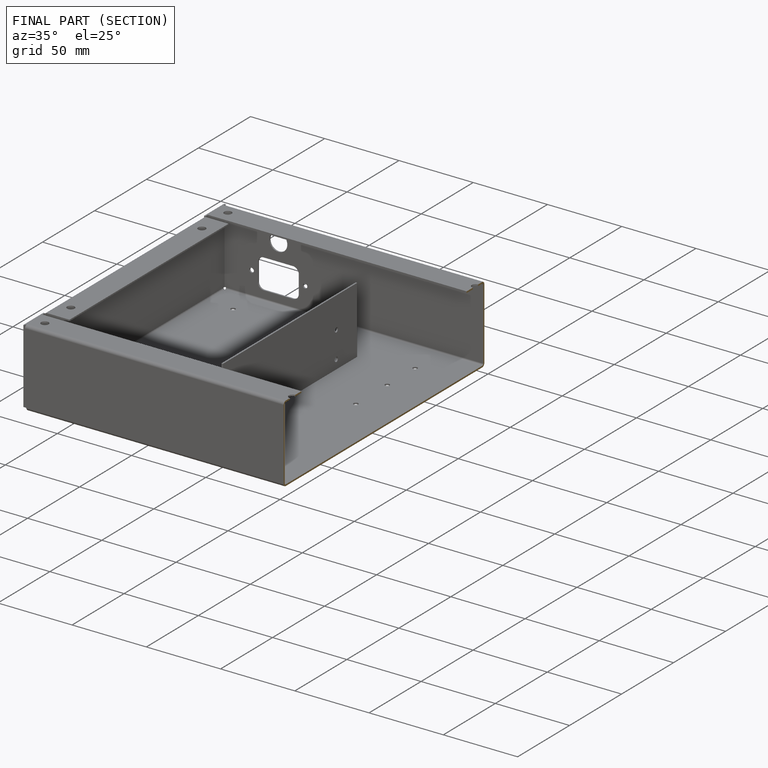
[diagram: finished part — half-section view (interior)]
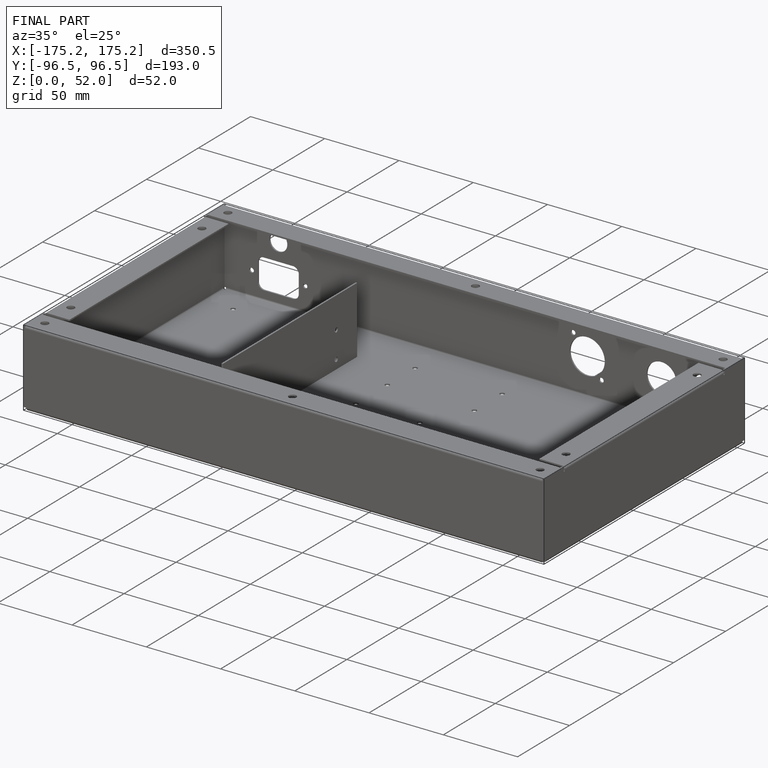
[diagram: finished part — iso view with bounding-box wireframe]
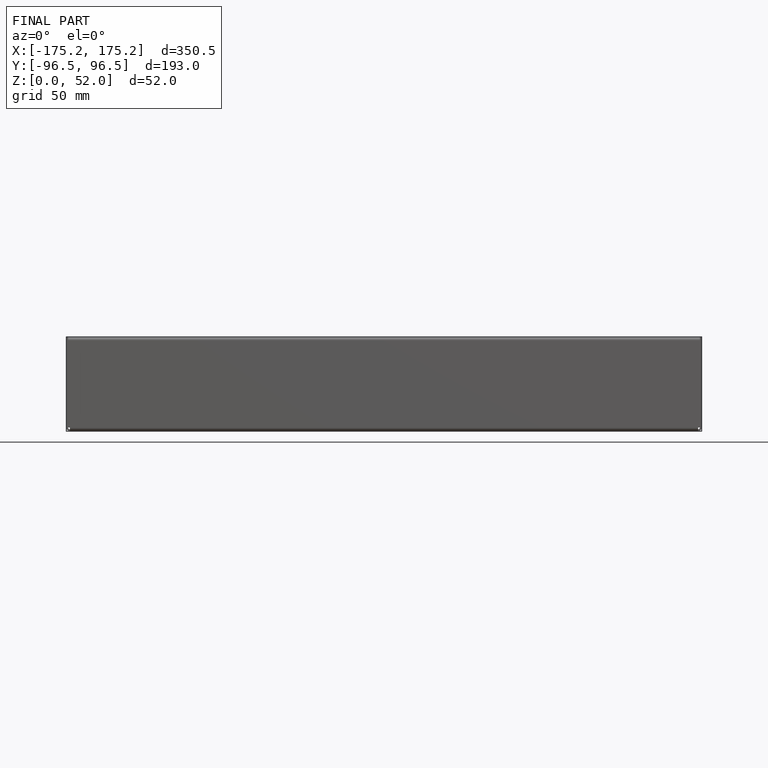
[diagram: finished part — front view with bounding-box wireframe]
